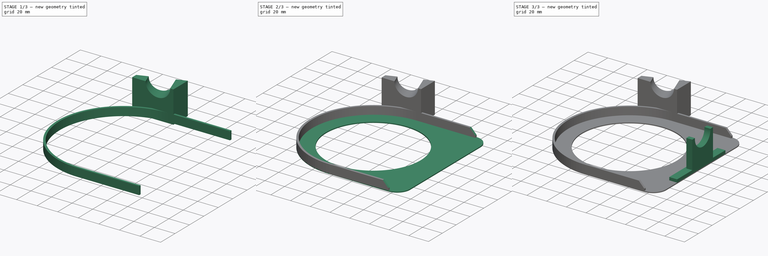
[diagram: build sequence overview — one tinted view per stage of 3, left to right]
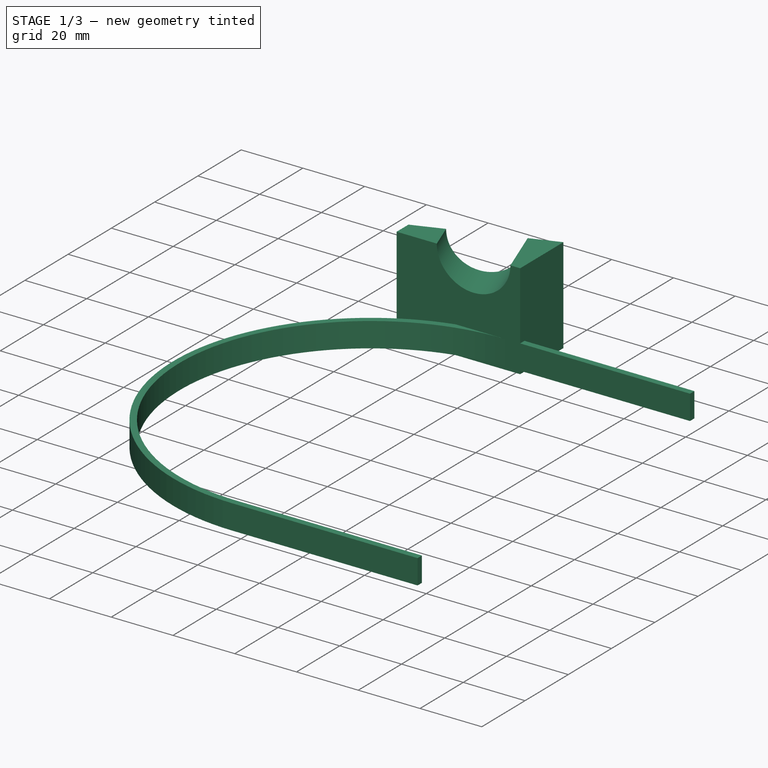
[diagram: stage 1 of 3 — iso view after this stage's code; geometry added in this stage tinted green]
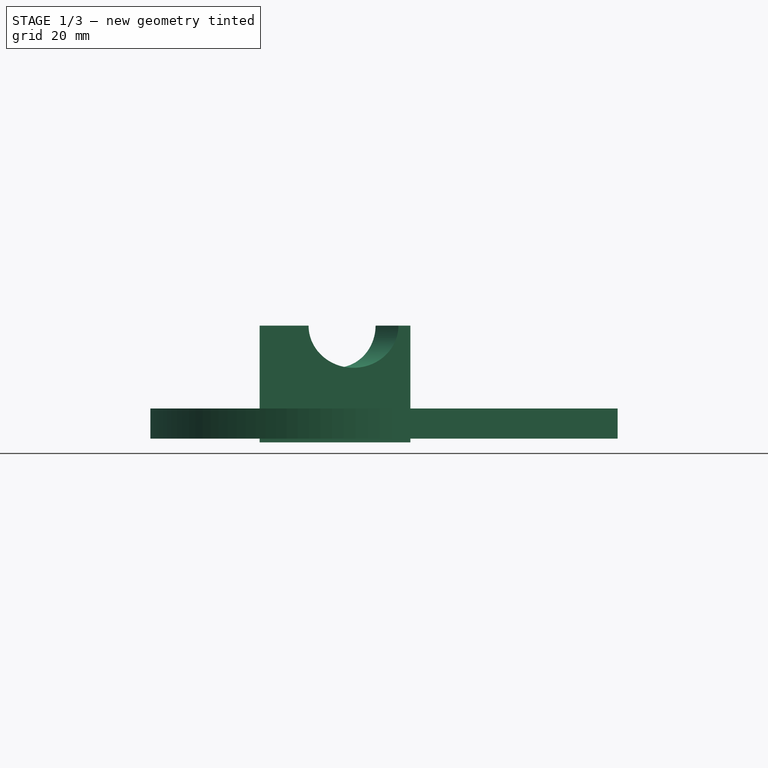
[diagram: stage 1 of 3 — front view after this stage's code; geometry added in this stage tinted green]
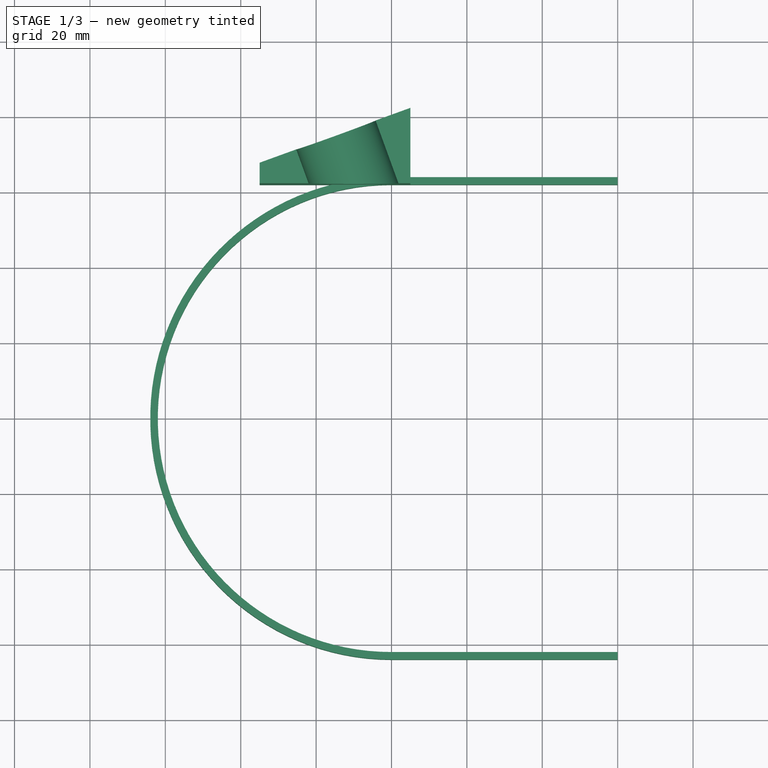
[diagram: stage 1 of 3 — top view after this stage's code; geometry added in this stage tinted green]
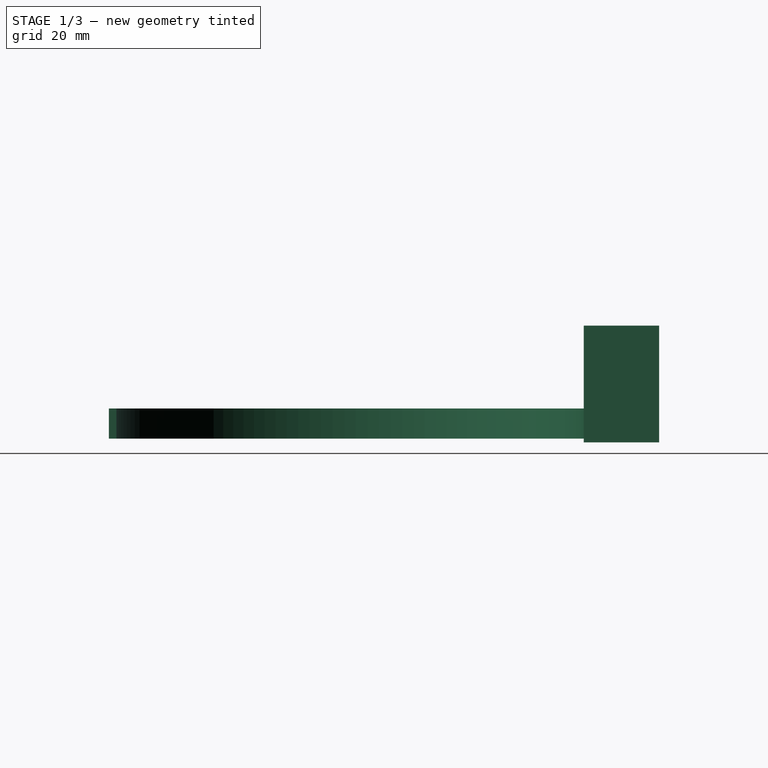
[diagram: stage 1 of 3 — right view after this stage's code; geometry added in this stage tinted green]
FCSTD DOCUMENT  (FreeCAD 0.16R)
Label: chainguard25TRev1.V1
License: All rights reserved
LicenseURL: http://en.wikipedia.org/wiki/All_rights_reserved
objects: Sketcher::SketchObject×8, PartDesign::Pad×5, PartDesign::Pocket×3
note: 24 computed .brp shape members not serialized (recipe doc carries the construction recipe); baked Part::Feature solids carry a one-line shape summary decoded from their .brp

FEATURE [Sketcher::SketchObject] Sketch002
  sketch-geometry (8):
    g0: LineSegment StartX=60 StartY=64 StartZ=0 EndX=0 EndY=64 EndZ=0
    g1: LineSegment StartX=60 StartY=-64 StartZ=0 EndX=0 EndY=-64 EndZ=0
    g2: ArcOfCircle CenterX=6.44712e-05 CenterY=0 CenterZ=0 NormalX=0 NormalY=0 NormalZ=1 Radius=64 StartAngle=1.5708 EndAngle=4.71239
    g3: LineSegment StartX=0 StartY=62 StartZ=0 EndX=60 EndY=62 EndZ=0
    g4: LineSegment StartX=0 StartY=-62 StartZ=0 EndX=60 EndY=-62 EndZ=0
    g5: LineSegment StartX=60 StartY=64 StartZ=0 EndX=60 EndY=62 EndZ=0
    g6: LineSegment StartX=60 StartY=-62 StartZ=0 EndX=60 EndY=-64 EndZ=0
    g7: ArcOfCircle CenterX=1.45954e-05 CenterY=0 CenterZ=0 NormalX=0 NormalY=0 NormalZ=1 Radius=62 StartAngle=1.5708 EndAngle=4.71239
  constraints (25):
    c: Horizontal(g0)
    c: Horizontal(g1)
    c: Coincident(g2,g1)
    c: Coincident(g0,g2)
    c: DistanceX(g1,g0) = 0
    c: Equal(g0,g1)
    c: DistanceY(g1,g0) = 128
    c: Radius(g2) = 64
    c: Symmetric(g1,g0,g-1)
    c: Radius(g7) = 62
    c: Parallel(g0,g3)
    c: DistanceY(g3,g0) = 2
    c: DistanceY(g1,g4) = 2
    c: Parallel(g4,g1)
    c: DistanceX(g0,g3) = 0
    c: DistanceX(g4) = 0
    c: DistanceX(g0) = 60
    c: Equal(g3,g0)
    c: Equal(g4,g0)
    c: Coincident(g4,g6)
    c: Coincident(g6,g1)
    c: Coincident(g5,g3)
    c: Coincident(g5,g0)
    c: Coincident(g7,g3)
    c: Coincident(g7,g4)
FEATURE [PartDesign::Pad] Pad001  label="Connector"
  Length = 8
  Length2 = 100
  Sketch = -> Sketch002
  Type = 0
FEATURE [Sketcher::SketchObject] Sketch004  label="BossST"
  sketch-geometry (5):
    g0: LineSegment StartX=5 StartY=62 StartZ=0 EndX=-35 EndY=62 EndZ=0
    g1: LineSegment StartX=-35 StartY=62 StartZ=0 EndX=-35 EndY=67.4412 EndZ=0
    g2: LineSegment StartX=5 StartY=82 StartZ=0 EndX=5 EndY=62 EndZ=0
    g3: LineSegment StartX=-35 StartY=67.4412 StartZ=0 EndX=5 EndY=82 EndZ=0
    g4: LineSegment [constr] StartX=10 StartY=0 StartZ=0 EndX=-16.6216 EndY=87.0754 EndZ=0
  constraints (15):
    c: Coincident(g0,g1)
    c: Vertical(g1)
    c: Vertical(g2)
    c: DistanceX(g0,g0) = 40
    c: DistanceX(g-1,g1) = -35
    c: Angle(g3) = 0.349066
    c: DistanceY(g0,g-1) = -62
    c: Horizontal(g0)
    c: DistanceY(g2,g2) = -20
    c: Coincident(g2,g0)
    c: Coincident(g3,g2)
    c: Coincident(g1,g3)
    c: PointOnObject(g4,g-1)
    c: Angle(g4) = 1.8675
    c: DistanceX(g-1,g4) = 10
FEATURE [PartDesign::Pad] Pad002  label="STboss"
  Length = 30
  Length2 = 1
  Sketch = -> Sketch004
  Type = 4
FEATURE [Sketcher::SketchObject] Sketch012
  Placement = pos=(-25.7694,70.8009,0) rot=(-0.123724,0.701674,0.701674;3.38779rad)
  Support = -> Pad002 [Face3]
  sketch-geometry (1):
    g0: Circle CenterX=-11.7294 CenterY=30 CenterZ=0 NormalX=0 NormalY=0 NormalZ=1 Radius=11.2
  constraints (2):
    c: Radius(g0) = 11.2
    c: DistanceY(g-1,g0) = 30
FEATURE [PartDesign::Pocket] Pocket  label="STpocket"
  Length = 5
  Sketch = -> Sketch012
  Type = 1
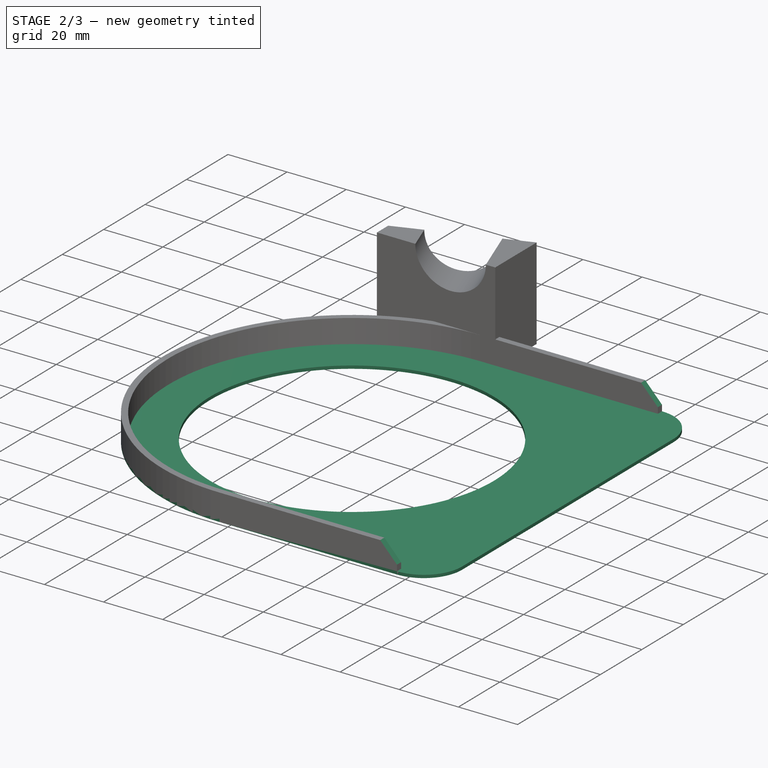
[diagram: stage 2 of 3 — iso view after this stage's code; geometry added in this stage tinted green]
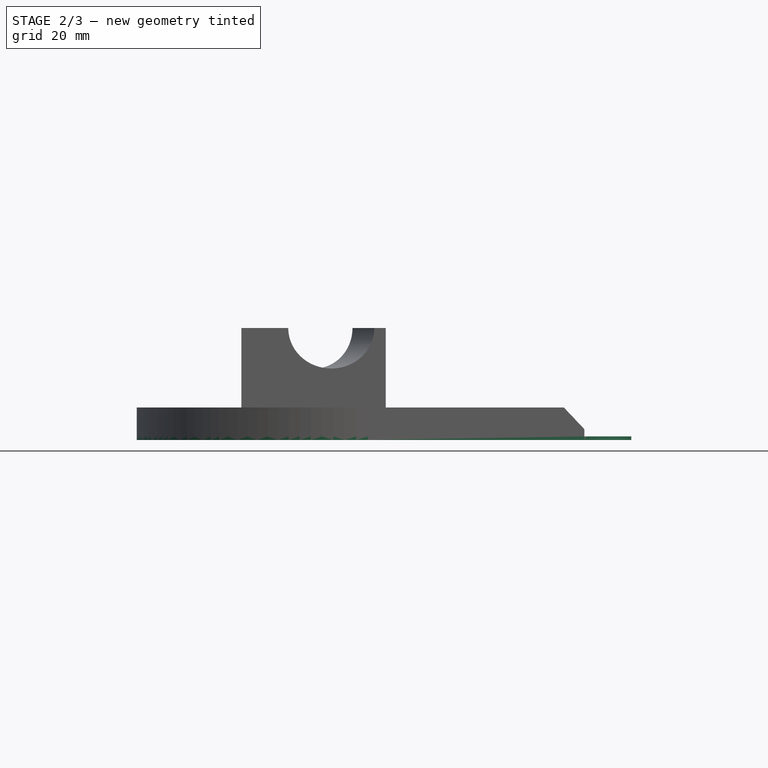
[diagram: stage 2 of 3 — front view after this stage's code; geometry added in this stage tinted green]
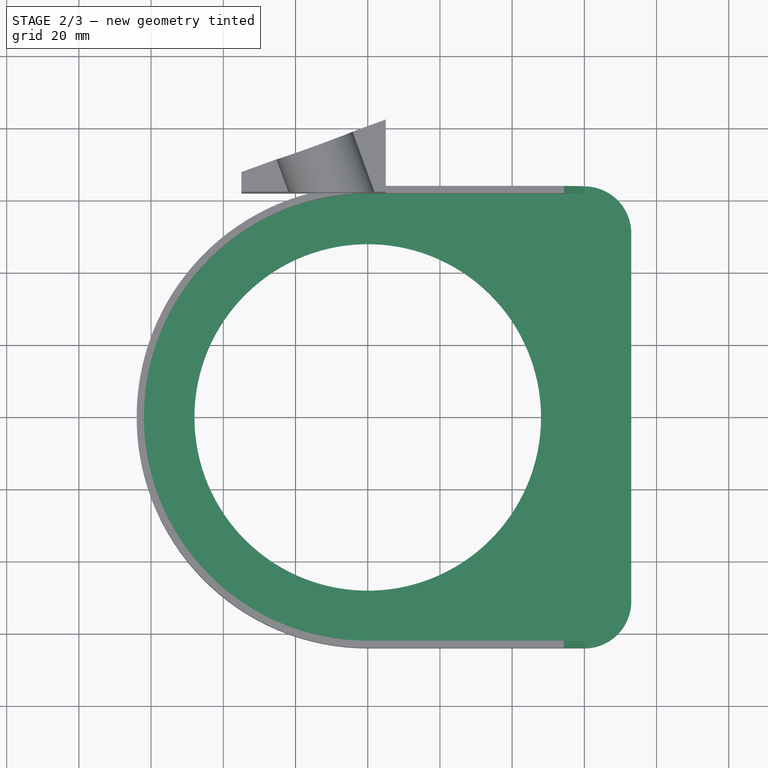
[diagram: stage 2 of 3 — top view after this stage's code; geometry added in this stage tinted green]
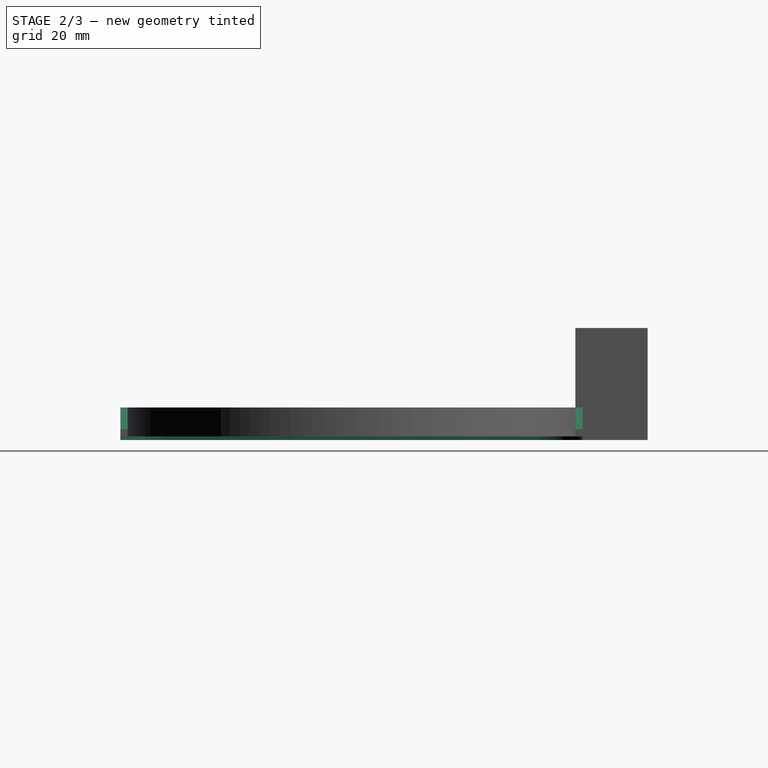
[diagram: stage 2 of 3 — right view after this stage's code; geometry added in this stage tinted green]
FEATURE [Sketcher::SketchObject] Sketch001
  sketch-geometry (7):
    g0: LineSegment StartX=60 StartY=64 StartZ=0 EndX=0 EndY=64 EndZ=0
    g1: LineSegment StartX=60 StartY=-64 StartZ=0 EndX=0 EndY=-64 EndZ=0
    g2: ArcOfCircle CenterX=4.10977e-05 CenterY=0 CenterZ=0 NormalX=0 NormalY=0 NormalZ=1 Radius=64 StartAngle=1.5708 EndAngle=4.71239
    g3: Circle CenterX=0 CenterY=0 CenterZ=0 NormalX=0 NormalY=0 NormalZ=1 Radius=48
    g4: ArcOfCircle CenterX=60 CenterY=51 CenterZ=0 NormalX=0 NormalY=0 NormalZ=1 Radius=13 StartAngle=0 EndAngle=1.5708
    g5: ArcOfCircle CenterX=60 CenterY=-51 CenterZ=0 NormalX=0 NormalY=0 NormalZ=1 Radius=13 StartAngle=4.71239 EndAngle=6.28319
    g6: LineSegment StartX=73 StartY=51 StartZ=0 EndX=73 EndY=-51 EndZ=0
  constraints (23):
    c: Horizontal(g0)
    c: Horizontal(g1)
    c: Coincident(g2,g1)
    c: Coincident(g0,g2)
    c: DistanceX(g1,g0) = 0
    c: Equal(g0,g1)
    c: DistanceY(g1,g0) = 128
    c: Radius(g2) = 64
    c: Symmetric(g1,g0,g-1)
    c: Radius(g3) = 48
    c: Coincident(g3,g-1)
    c: PointOnObject(g4,g0)
    c: Radius(g4) = 13
    c: DistanceX(g0,g0) = 60
    c: Equal(g5,g4)
    c: Vertical(g6)
    c: DistanceX(g-1,g6) = 73
    c: Symmetric(g6,g6,g-1)
    c: DistanceY(g6,g6) = 102
    c: Coincident(g4,g6)
    c: Coincident(g5,g6)
    c: Coincident(g1,g5)
    c: Coincident(g0,g4)
FEATURE [PartDesign::Pad] Pad  label="Faceplate"
  Length = 1
  Length2 = 100
  Reversed = true
  Sketch = -> Sketch001
  Type = 0
FEATURE [Sketcher::SketchObject] Sketch011
  Placement = pos=(0,64,0) rot=(0,0.707107,0.707107;3.14159rad)
  Support = -> Pad001 [Face1]
  sketch-geometry (4):
    g0: LineSegment StartX=-53.9525 StartY=8.40024 StartZ=0 EndX=-64.2023 EndY=10.8364 EndZ=0
    g1: LineSegment StartX=-64.2023 StartY=10.8364 StartZ=0 EndX=-61.1872 EndY=0.741769 EndZ=0
    g2: LineSegment StartX=-61.1872 StartY=0.741769 StartZ=0 EndX=-53.9525 EndY=8.40024 EndZ=0
    g3: Circle [constr] CenterX=-59.7806 CenterY=6.65947 CenterZ=0 NormalX=0 NormalY=0 NormalZ=1 Radius=6.08256
  constraints (14):
    c: Coincident(g0,g1)
    c: Coincident(g1,g2)
    c: Coincident(g2,g0)
    c: Equal(g0,g1)
    c: Equal(g0,g2)
    c: PointOnObject(g0,g3)
    c: PointOnObject(g1,g3)
    c: PointOnObject(g2,g3)
    c: DistanceY(g-1,g0) = 8.40024
    c: DistanceX(g0,g-1) = 53.9525
    c: Equal(g2,g0)
    c: Equal(g0,g1)
    c: Distance(g2) = 10.5353
    c: Angle(g0) = 2.90824
FEATURE [PartDesign::Pocket] Pocket005  label="Fillet_Connector"
  Length = 5
  Sketch = -> Sketch011
  Type = 1
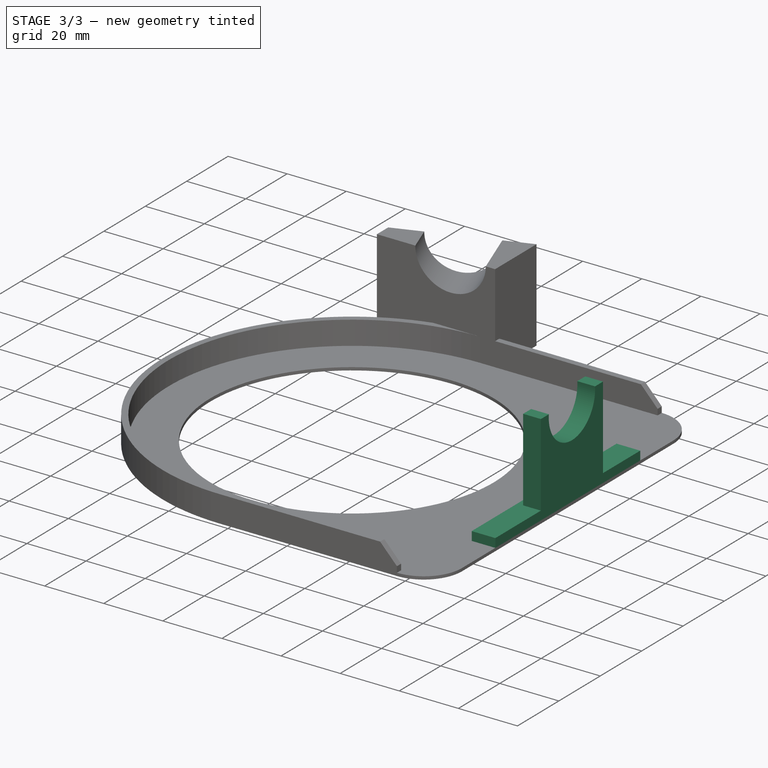
[diagram: stage 3 of 3 — iso view after this stage's code; geometry added in this stage tinted green]
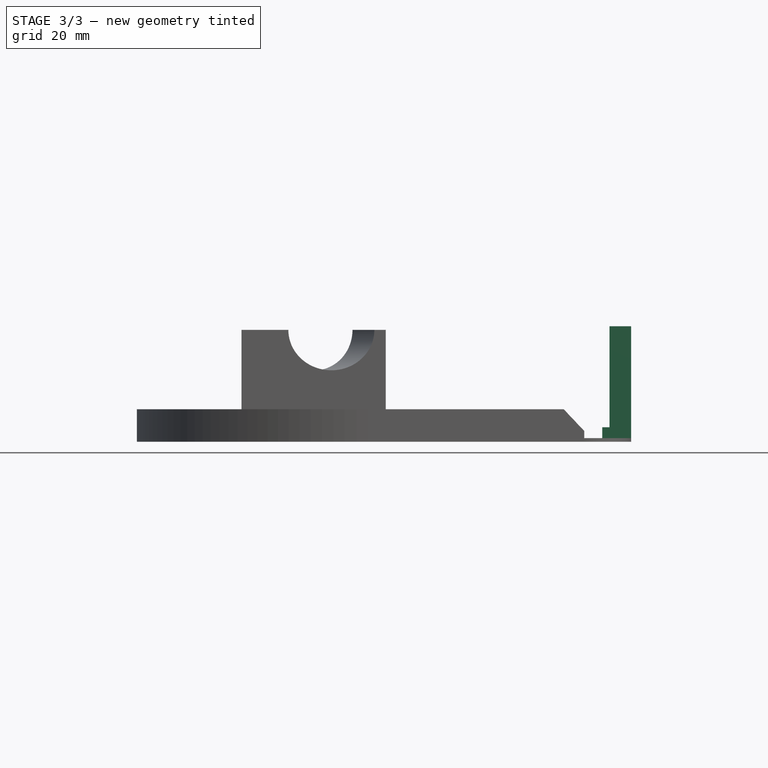
[diagram: stage 3 of 3 — front view after this stage's code; geometry added in this stage tinted green]
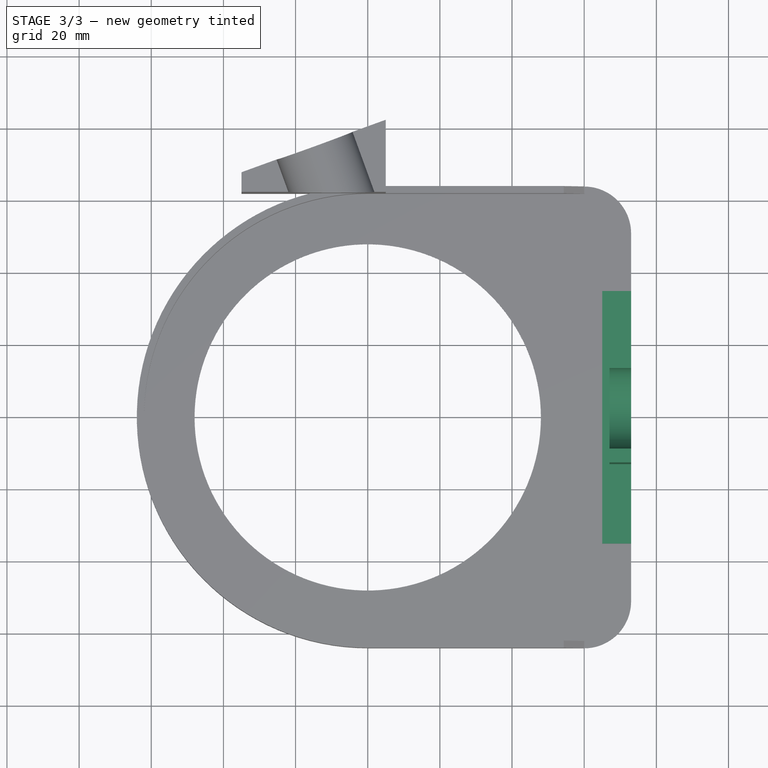
[diagram: stage 3 of 3 — top view after this stage's code; geometry added in this stage tinted green]
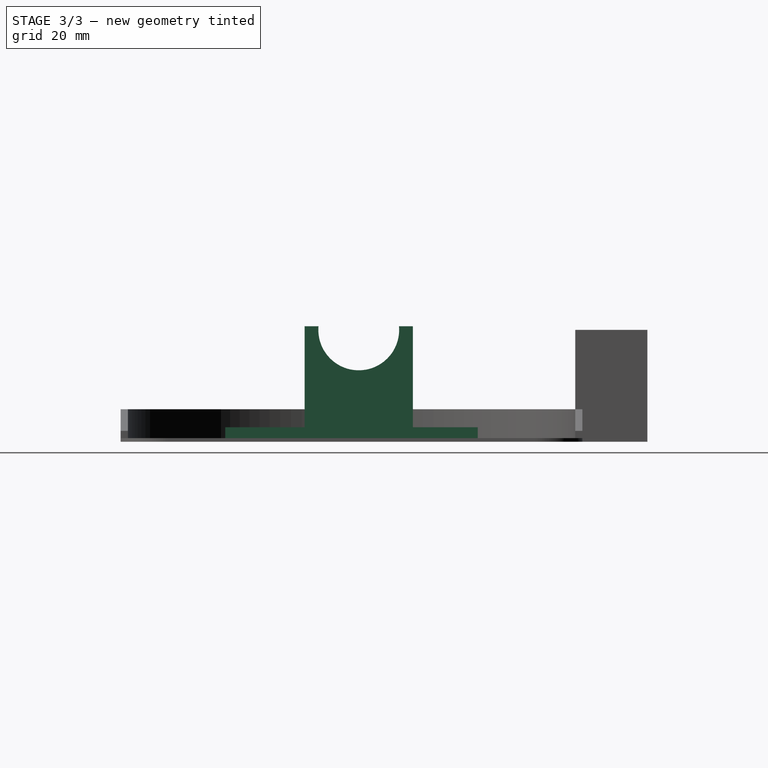
[diagram: stage 3 of 3 — right view after this stage's code; geometry added in this stage tinted green]
FEATURE [Sketcher::SketchObject] Sketch
  Support = -> Pad [Face8]
  sketch-geometry (4):
    g0: LineSegment StartX=65 StartY=35 StartZ=0 EndX=73 EndY=35 EndZ=0
    g1: LineSegment StartX=73 StartY=35 StartZ=0 EndX=73 EndY=-35 EndZ=0
    g2: LineSegment StartX=73 StartY=-35 StartZ=0 EndX=65 EndY=-35 EndZ=0
    g3: LineSegment StartX=65 StartY=-35 StartZ=0 EndX=65 EndY=35 EndZ=0
  constraints (12):
    c: Coincident(g0,g1)
    c: Coincident(g1,g2)
    c: Coincident(g2,g3)
    c: Coincident(g3,g0)
    c: Horizontal(g0)
    c: Horizontal(g2)
    c: Vertical(g1)
    c: Vertical(g3)
    c: Symmetric(g0,g2,g-1)
    c: DistanceX(g0,g0) = 8
    c: DistanceX(g-1,g0) = 73
    c: DistanceY(g3,g3) = 70
FEATURE [PartDesign::Pad] Pad003  label="SyncStiffener"
  Length = 3
  Length2 = 100
  Sketch = -> Sketch
  Type = 0
FEATURE [Sketcher::SketchObject] Sketch008
  Placement = pos=(0,0,3) rot=(0,0,1;0rad)
  Support = -> Pad003 [Face14]
  sketch-geometry (4):
    g0: LineSegment StartX=67 StartY=17 StartZ=0 EndX=73 EndY=17 EndZ=0
    g1: LineSegment StartX=73 StartY=17 StartZ=0 EndX=73 EndY=-13 EndZ=0
    g2: LineSegment StartX=73 StartY=-13 StartZ=0 EndX=67 EndY=-13 EndZ=0
    g3: LineSegment StartX=67 StartY=-13 StartZ=0 EndX=67 EndY=17 EndZ=0
  constraints (12):
    c: Coincident(g0,g1)
    c: Coincident(g1,g2)
    c: Coincident(g2,g3)
    c: Coincident(g3,g0)
    c: Horizontal(g0)
    c: Horizontal(g2)
    c: Vertical(g1)
    c: Vertical(g3)
    c: DistanceX(g0) = 73
    c: DistanceX(g0,g0) = 6
    c: DistanceY(g1,g1) = 30
    c: DistanceY(g-1,g0) = 17
FEATURE [PartDesign::Pad] Pad004  label="SyncTubeBoss"
  Length = 28
  Length2 = 100
  Sketch = -> Sketch008
  Type = 0
FEATURE [Sketcher::SketchObject] Sketch009
  ExternalGeometry = -> [Pad004]
  Placement = pos=(73,0,0) rot=(0.57735,0.57735,0.57735;2.0944rad)
  Support = -> Pad004 [Face15]
  sketch-geometry (1):
    g0: Circle CenterX=2 CenterY=30 CenterZ=0 NormalX=0 NormalY=0 NormalZ=1 Radius=11.2
  constraints (3):
    c: DistanceX(g0,g-3) = 15
    c: DistanceY(g-1,g0) = 30
    c: Radius(g0) = 11.2
FEATURE [PartDesign::Pocket] Pocket003  label="SyncTubeHole"
  Length = 5
  Sketch = -> Sketch009
  Type = 1
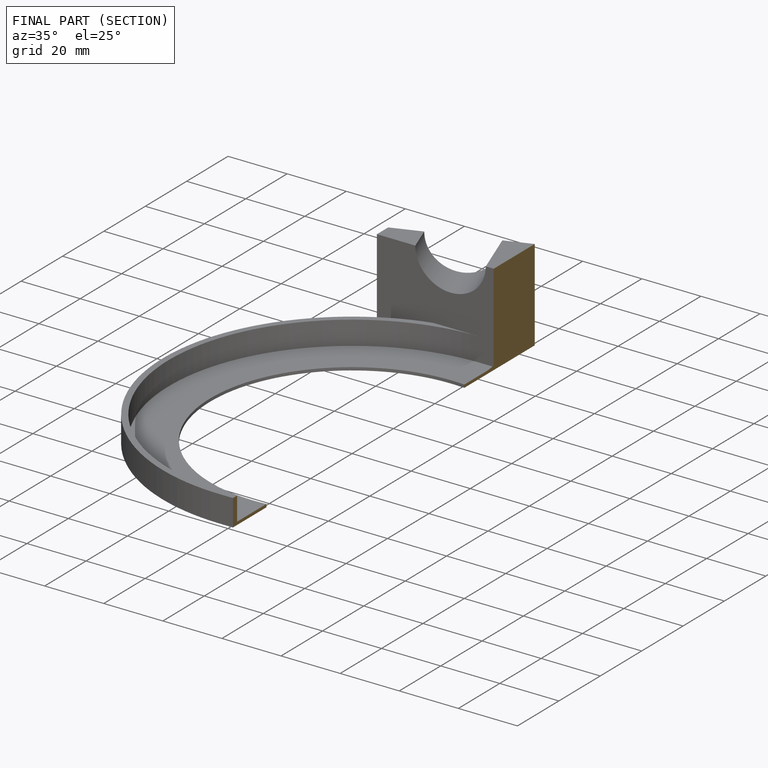
[diagram: finished part — half-section view (interior)]
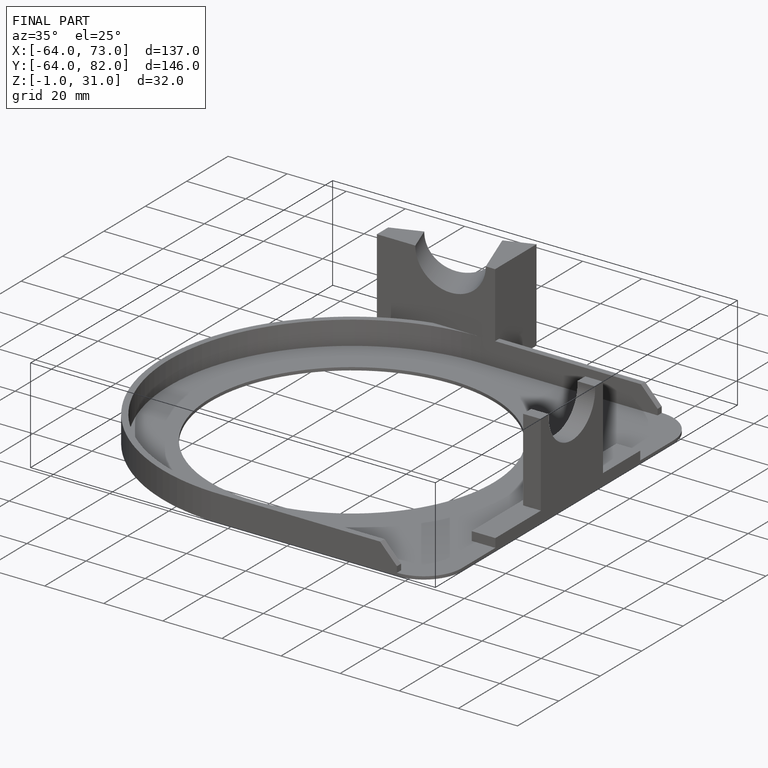
[diagram: finished part — iso view with bounding-box wireframe]
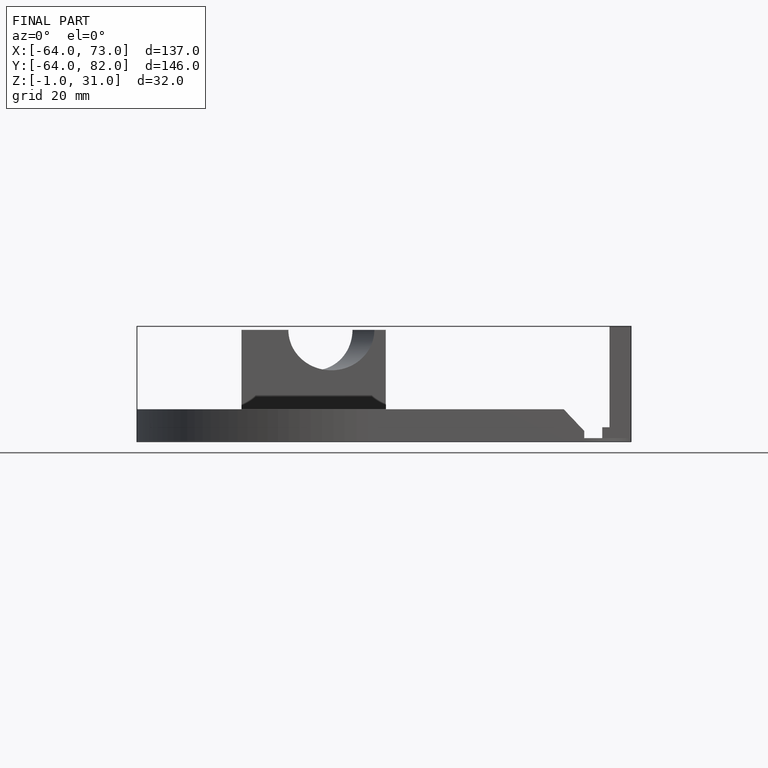
[diagram: finished part — front view with bounding-box wireframe]
